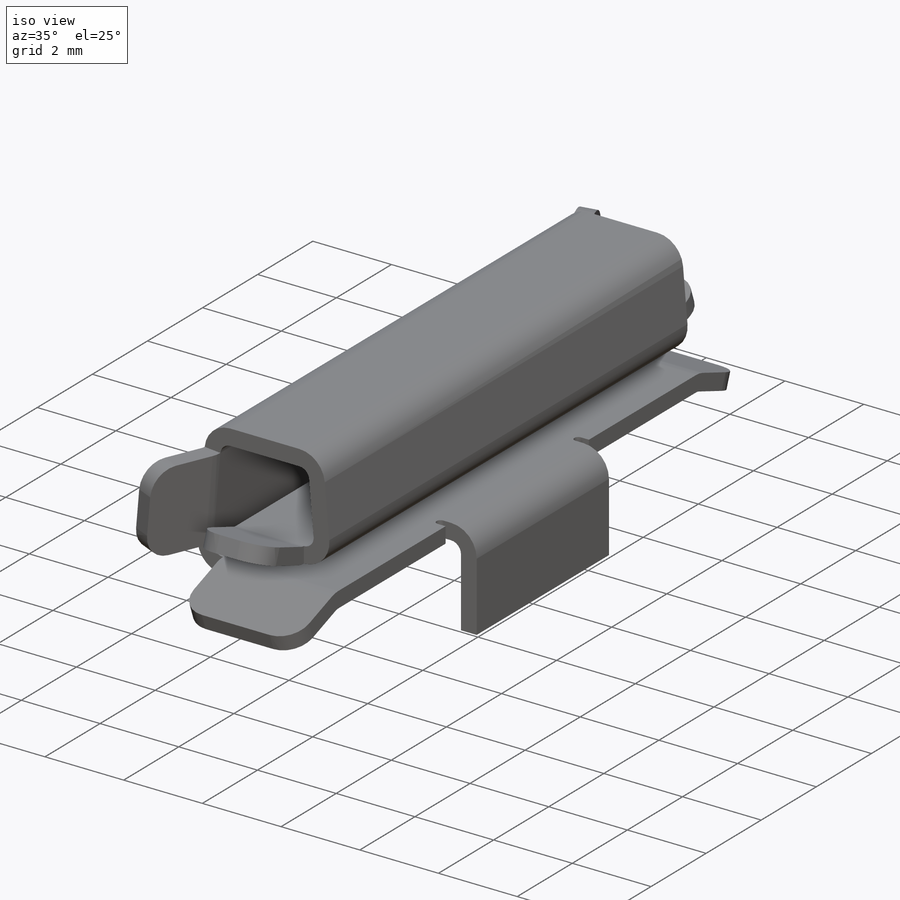
[diagram: iso view]
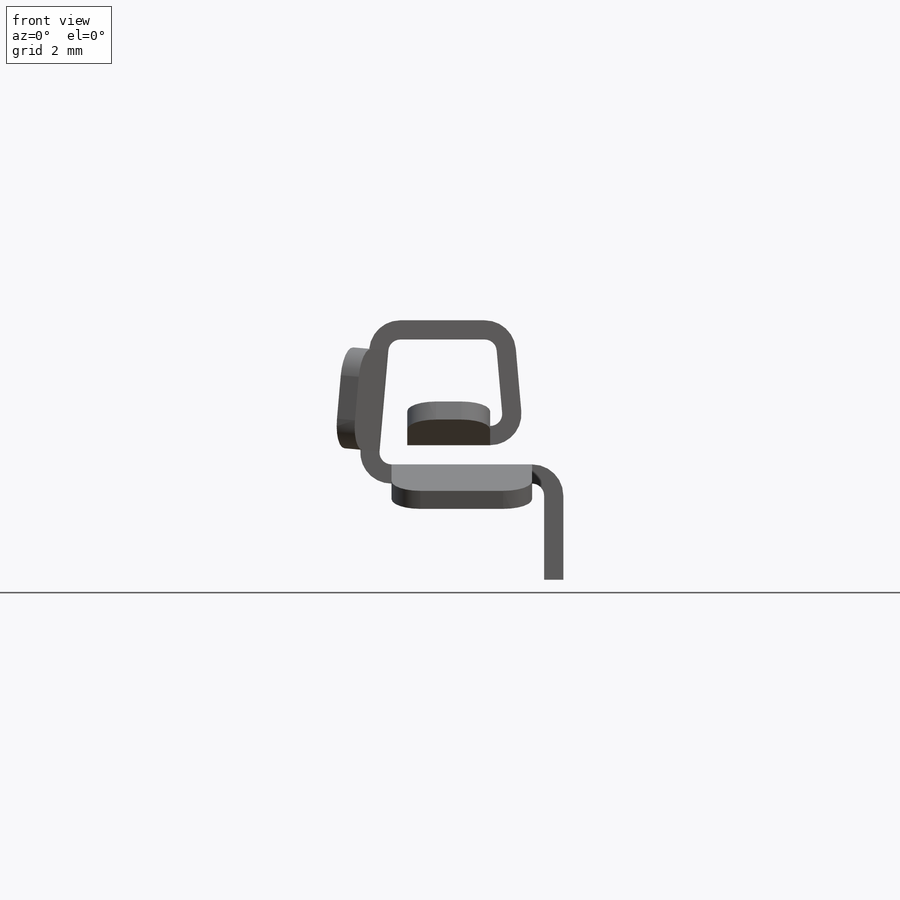
[diagram: front view]
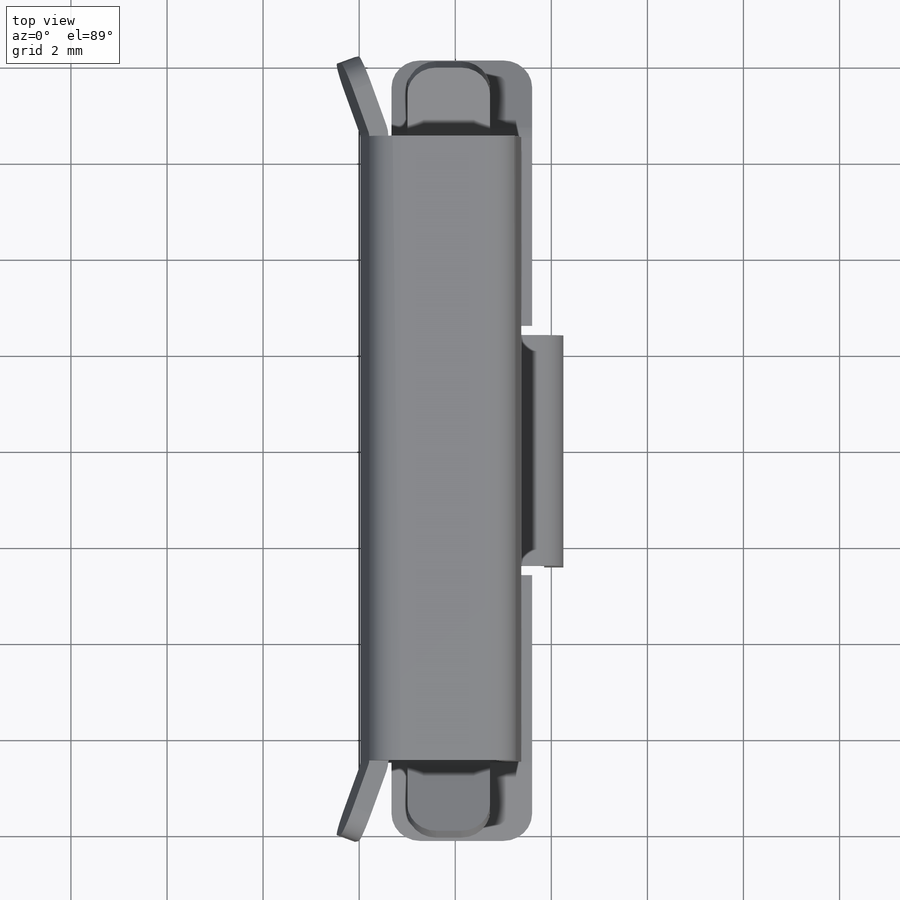
[diagram: top view]
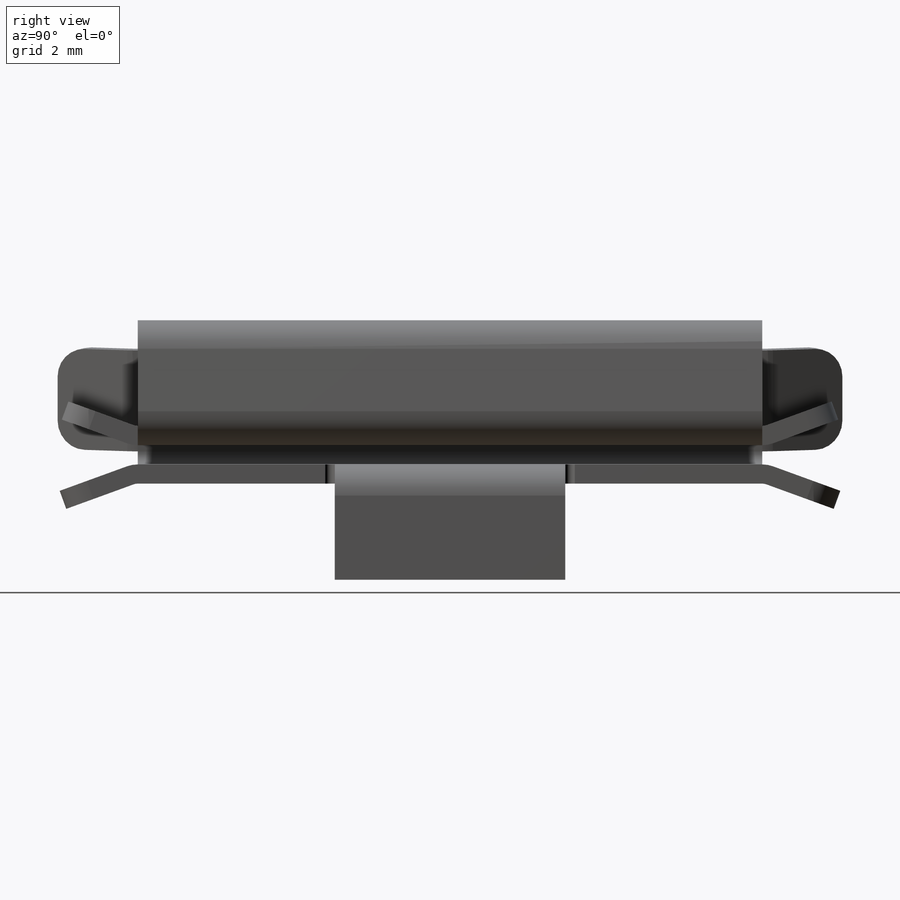
[diagram: right view]
SOLIDWORKS PART (.sldprt)
format: sldprt  version: not decoded by parser v0  size: 515,584 bytes
history: native  units: mm
features: sketch x14, sheet_metal_op x14, plane x4, extrude x3, mirror x3, material x1, cut_extrude x1, fillet x1 + 23 further entries (+12 scaffold rows collapsed; 3 parser-record rows omitted)
feature tree (79):
  scaffold x12  (default folders/planes/origin — collapsed)
  material  "Material <not specified>"
  sketch  "Sketch1"  dims[c1.D1=2.0mm c1.D2=2.6mm c1.D3=~3.542834mm c2.D3=~75.893675deg c3.D3=~1483.529864mm c3.D4=~1658.062789mm c3.D5=~1.313102mm c3.D6=1.176mm c4.D5=0.8mm c4.D6=3.2mm c4.D1=0.2mm c4.D2=0.5 c4.D3=0.0deg c5.D6=~28.64789deg]
  sheet_metal_op  "Base-Flange1"
  sheet_metal_op  "BaseBend2"
  sheet_metal_op  "BaseBend3"
  sheet_metal_op  "BaseBend4"
  sketch  "Sketch6"  dims[D2=0.1mm D1=5.0mm D3=0.2mm]
  cut_extrude  "Cut-Extrude1"  [1 undecoded]
  plane  "Plane1"
  sketch  "Sketch10"  dims[D1=2.0mm]
  sheet_metal_op  "Miterbend1"
  plane  "Plane2"
  sketch  "Sketch12"  dims[D1=~349.06585mm D2=1.4mm]
  extrude  "Miter Flange2"  [1 undecoded]
  sheet_metal_op  "Miterbend2"
  plane  "Plane6"
  sketch  "Sketch17"  dims[D1=~349.06585mm]
  extrude  "Miter Flange3"  [1 undecoded]
  sheet_metal_op  "Miterbend3"
  plane  "Plane8"
  sketch  "Sketch20"  dims[D1=~349.06585mm]
  extrude  "Miter Flange5"  [1 undecoded]
  sheet_metal_op  "Miterbend5"
  fillet  "Fillet1"  Radius=0.6mm
  mirror  "Mirror1"
  sheet_metal_op  "MirrorBend1"
  sheet_metal_op  "MirrorBend2"
  sheet_metal_op  "MirrorBend3"
  sketch  "Bend-Lines1"
  sketch  "Bounding-Box1"
  sheet_metal_op  "Sheet-Metal(1)"
  "Flat-Pattern(1)"
  sketch  "Bend-Lines2"
  sketch  "Bounding-Box2"
  parser-record x3  (decoder bookkeeping rows leaked as tree rows — omitted from the tree; the rows remain in map.json)
  "Flatten-<BaseBend2>1"
  "Flatten-<BaseBend3>1"
  "Flatten-<BaseBend4>1"
  mirror  "Sheet-Metal(2)"
  sheet_metal_op  "Flat-Pattern(1)"
  sketch  "Bend-Lines3"
  sketch  "Bounding-Box3"
  "Flatten-<BaseBend1>2"
  "Flatten-<BaseBend2>2"
  "Flatten-<BaseBend3>2"
  "Flatten-<BaseBend4>2"
  "Flatten-<Miterbend1>1"
  "Flatten-<Miterbend2>1"
  "Flatten-<Miterbend3>1"
  "Flatten-<Miterbend5>1"
  mirror  "Sheet-Metal(3)"
  sheet_metal_op  "Flat-Pattern(1)"
  sketch  "Bend-Lines4"
  sketch  "Bounding-Box4"
  "Flatten-<Miterbend2>2"
  "Flatten-<Miterbend1>2"
  "Flatten-<BaseBend4>3"
  "Flatten-<BaseBend3>3"
  "Flatten-<BaseBend2>3"
  "Flatten-<BaseBend1>3"
  "Flatten-<Miterbend3>2"
  "Flatten-<Miterbend5>2"
  "Flatten-<MirrorBend1>1"
  "Flatten-<MirrorBend2>1"
  "Flatten-<MirrorBend3>1"
decode coverage: 7 of 36 modeling features carry decoded parameters; 23 rows unclassified (native names shown)
note: ~ marks probable driven/reference dimensions
note: 4 parameter values undecoded
summary: no parameter record found for 4 features
note: suppression state not decoded; provenance and decode notes live in map.json
